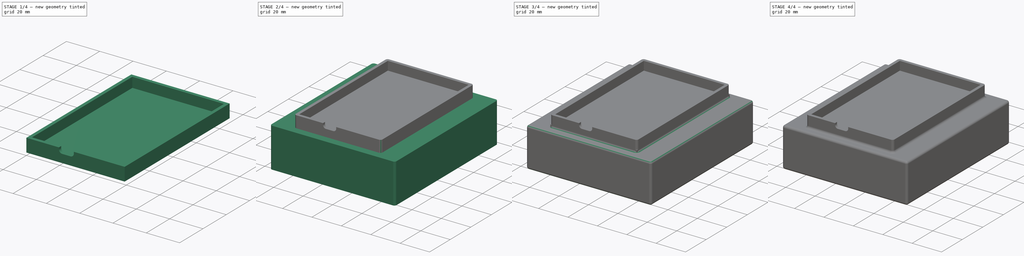
[diagram: build sequence overview — one tinted view per stage of 4, left to right]
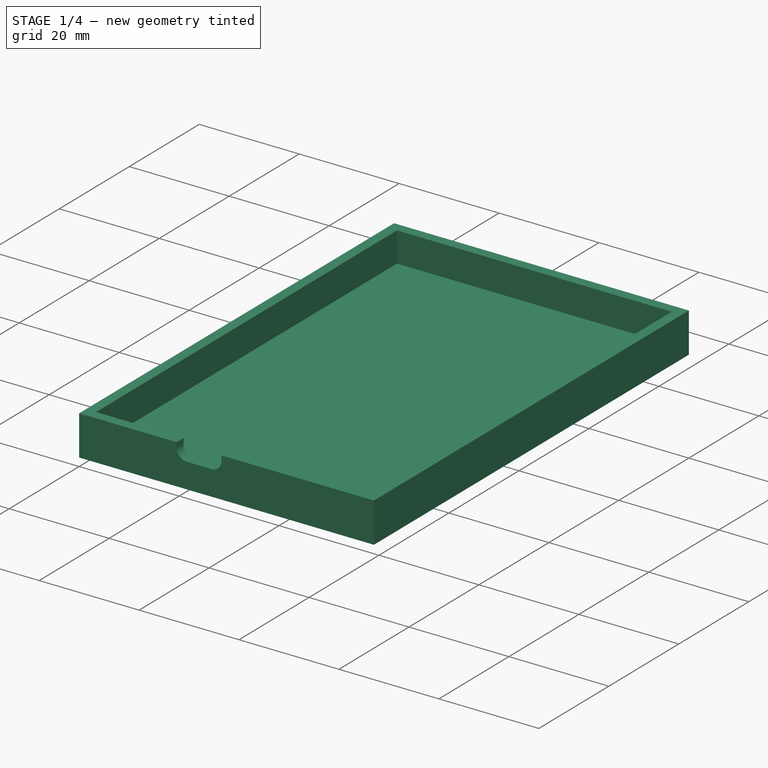
[diagram: stage 1 of 4 — iso view after this stage's code; geometry added in this stage tinted green]
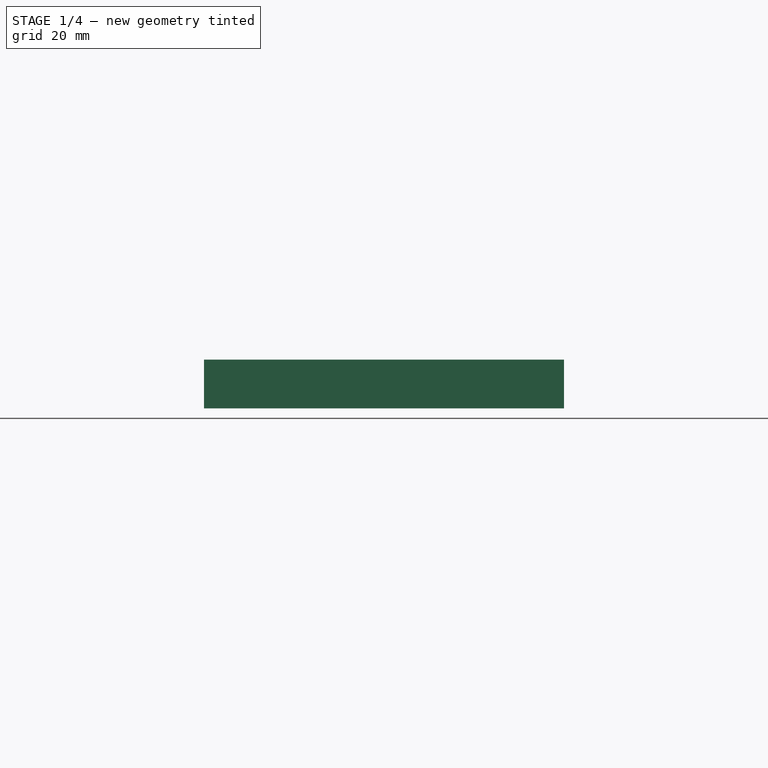
[diagram: stage 1 of 4 — front view after this stage's code; geometry added in this stage tinted green]
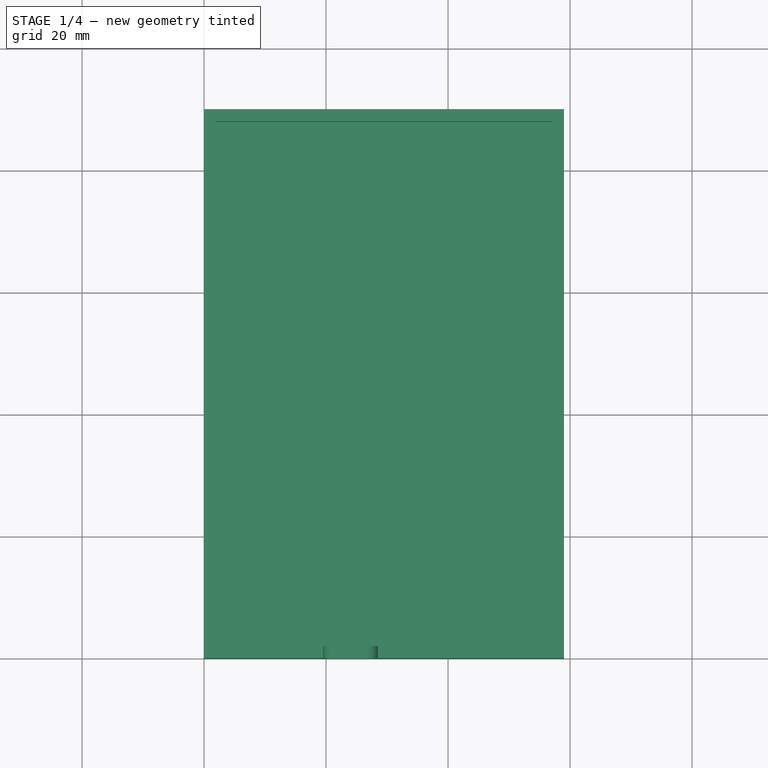
[diagram: stage 1 of 4 — top view after this stage's code; geometry added in this stage tinted green]
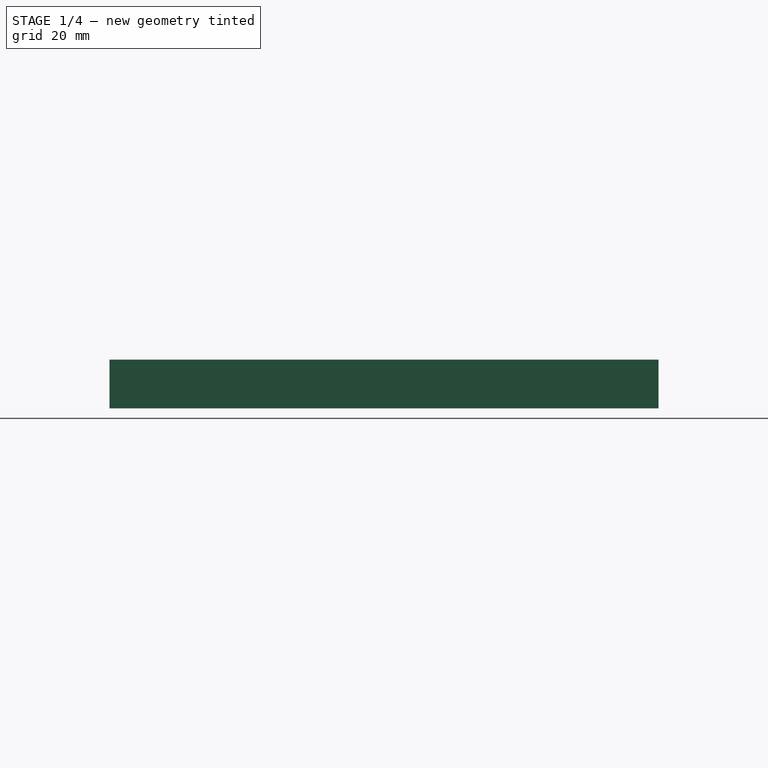
[diagram: stage 1 of 4 — right view after this stage's code; geometry added in this stage tinted green]
FCSTD DOCUMENT  (FreeCAD 1.0R39109 (Git))
Label: GuitarStrapControllerEnclosure
License: All rights reserved
LicenseURL: http://en.wikipedia.org/wiki/All_rights_reserved
objects: Sketcher::SketchObject×7, PartDesign::Pocket×5, PartDesign::Fillet×3, PartDesign::AdditiveBox×2, PartDesign::Pad×2, PartDesign::Body×2, App::Part×2
note: 52 computed .brp shape members not serialized (recipe doc carries the construction recipe); baked Part::Feature solids carry a one-line shape summary decoded from their .brp

FEATURE [PartDesign::AdditiveBox] Box
  AttacherType = Attacher::AttachEngine3D
  Height = 8
  Length = 59
  Suppressed = false
  Width = 90
FEATURE [Sketcher::SketchObject] Sketch
  ArcFitTolerance = 0
  AttachmentSupport = -> [Box]
  FullyConstrained = true
  MakeInternals = false
  MapMode = 5
  Placement = pos=(0,0,8) rot=(0,0,1;0rad)
  sketch-geometry (4):
    g0: LineSegment StartX=2 StartY=88 StartZ=0 EndX=57 EndY=88 EndZ=0
    g1: LineSegment StartX=57 StartY=88 StartZ=0 EndX=57 EndY=2 EndZ=0
    g2: LineSegment StartX=57 StartY=2 StartZ=0 EndX=2 EndY=2 EndZ=0
    g3: LineSegment StartX=2 StartY=2 StartZ=0 EndX=2 EndY=88 EndZ=0
  constraints (12):
    c: Coincident(g0,g1)
    c: Coincident(g1,g2)
    c: Coincident(g2,g3)
    c: Coincident(g3,g0)
    c: Horizontal(g0)
    c: Horizontal(g2)
    c: Vertical(g1)
    c: Vertical(g3)
    c: DistanceX(g0,g0) = 55
    c: DistanceY(g1,g1) = 86
    c: DistanceY(g-1,g2) = 2
    c: DistanceX(g-1,g2) = 2
FEATURE [PartDesign::Pocket] Pocket
  BaseFeature = -> Box
  Direction = (0,0,-1)
  Length = 6
  Length2 = 5
  Profile = -> Sketch
  ReferenceAxis = -> Sketch [N_Axis]
  Suppressed = false
  Type = 0
FEATURE [Sketcher::SketchObject] Sketch001
  ArcFitTolerance = 0
  AttachmentSupport = -> [Pocket]
  ExternalGeometry = -> [Pocket]
  FullyConstrained = true
  MakeInternals = false
  MapMode = 5
  Placement = pos=(0,0,0) rot=(1,0,0;1.5708rad)
  sketch-geometry (7):
    g0: LineSegment StartX=28.5 StartY=8 StartZ=0 EndX=28.5 EndY=7 EndZ=0
    g1: ArcOfCircle CenterX=26.5 CenterY=7 CenterZ=0 NormalX=0 NormalY=0 NormalZ=1 AngleXU=0 Radius=2 StartAngle=4.71239 EndAngle=6.28319
    g2: LineSegment StartX=26.5 StartY=5 StartZ=0 EndX=21.5 EndY=5 EndZ=0
    g3: ArcOfCircle CenterX=21.5 CenterY=7 CenterZ=0 NormalX=0 NormalY=0 NormalZ=1 AngleXU=0 Radius=2 StartAngle=3.14159 EndAngle=4.71239
    g4: LineSegment StartX=19.5 StartY=7 StartZ=0 EndX=19.5 EndY=8 EndZ=0
    g5: GeomPoint [constr] X=28.5 Y=5 Z=0
    g6: LineSegment StartX=19.5 StartY=8 StartZ=0 EndX=28.5 EndY=8 EndZ=0
  constraints (18):
    c: Tangent(g0,g1) = 1.5708
    c: Tangent(g1,g2) = 1.5708
    c: Tangent(g2,g3) = 1.5708
    c: Tangent(g3,g4) = 1.5708
    c: Horizontal(g2)
    c: Vertical(g0)
    c: Vertical(g4)
    c: Equal(g1,g3)
    c: PointOnObject(g5,g0)
    c: PointOnObject(g5,g2)
    c: PointOnObject(g0,g-3)
    c: PointOnObject(g4,g-3)
    c: DistanceX(g4,g0) = 9
    c: Radius(g1) = 2
    c: DistanceY(g2,g4) = 3
    c: DistanceX(g-1,g4) = 19.5
    c: Coincident(g6,g4)
    c: Coincident(g6,g0)
FEATURE [PartDesign::Pocket] Pocket001
  BaseFeature = -> Pocket
  Direction = (0,1,-2e-16)
  Length = 2
  Length2 = 5
  Profile = -> Sketch001
  ReferenceAxis = -> Sketch001 [N_Axis]
  Suppressed = false
  Type = 0
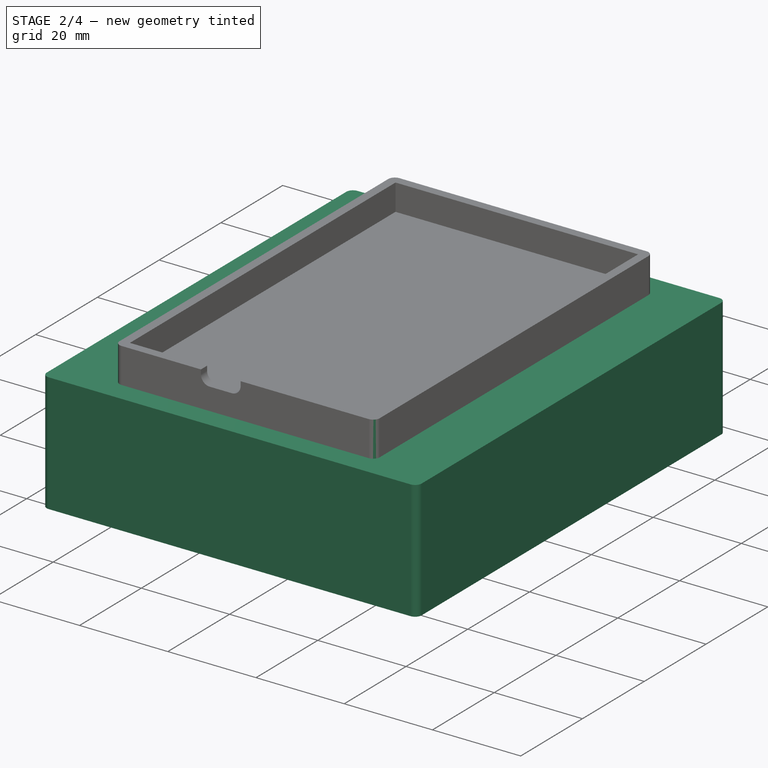
[diagram: stage 2 of 4 — iso view after this stage's code; geometry added in this stage tinted green]
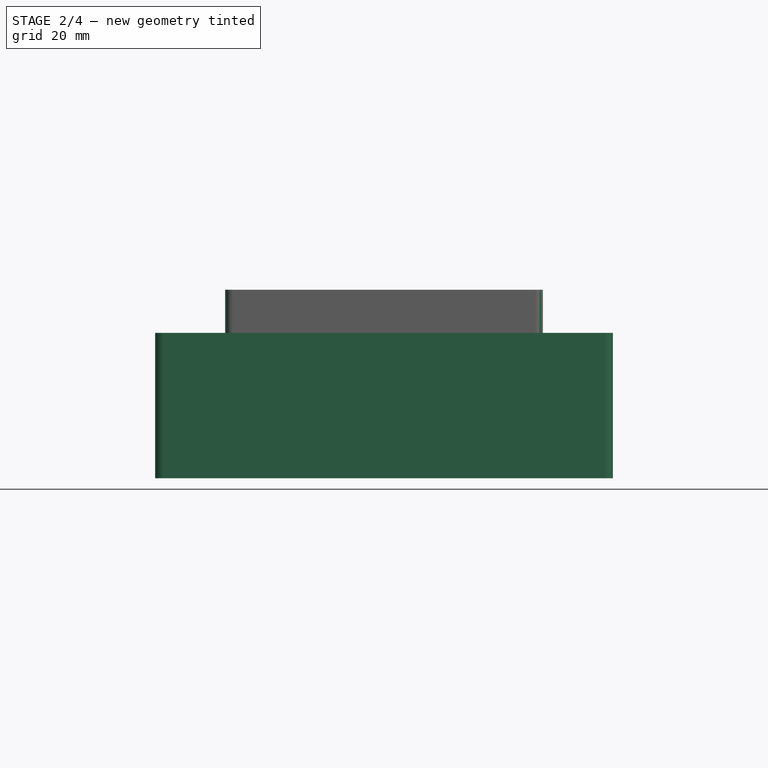
[diagram: stage 2 of 4 — front view after this stage's code; geometry added in this stage tinted green]
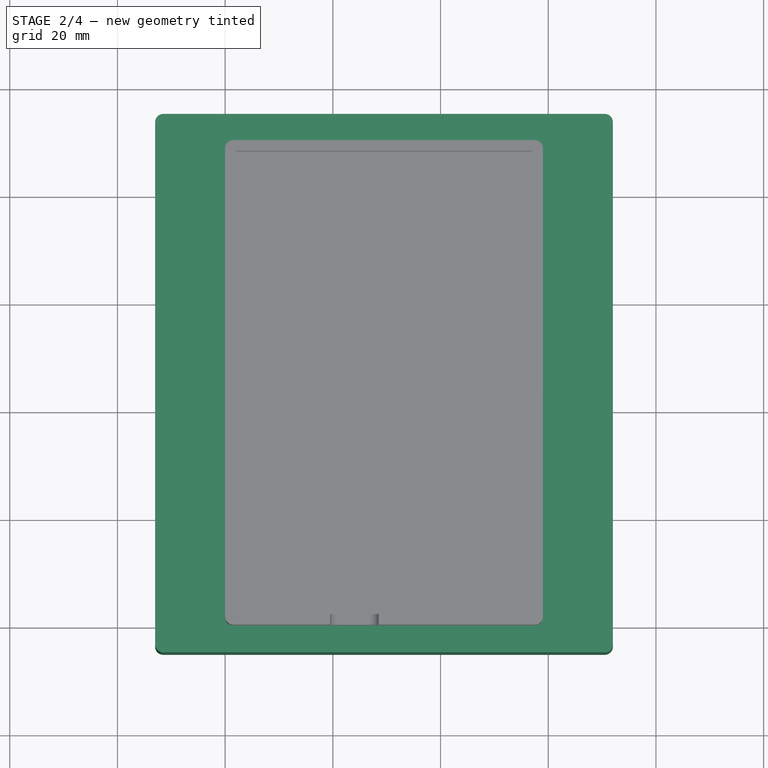
[diagram: stage 2 of 4 — top view after this stage's code; geometry added in this stage tinted green]
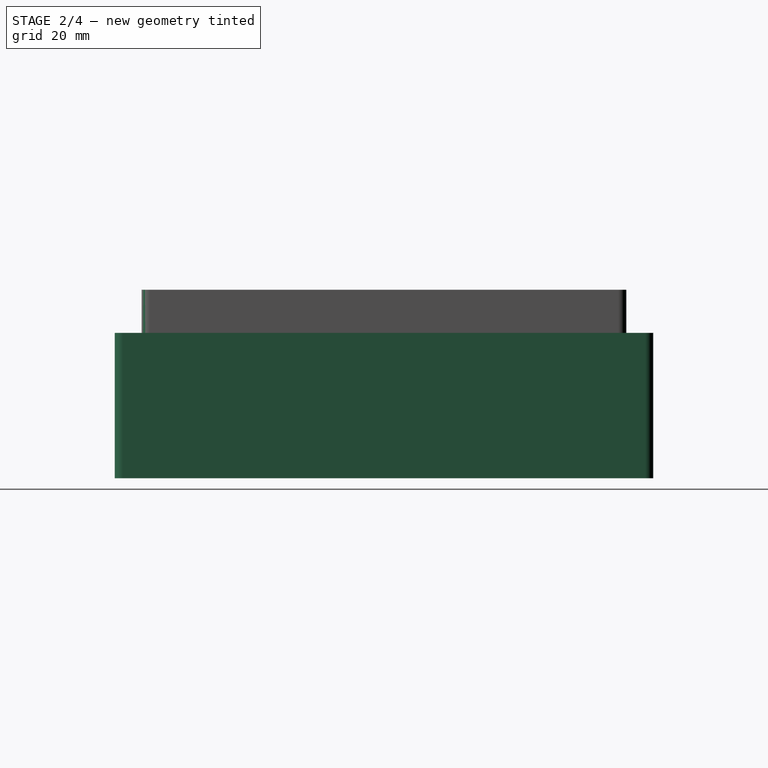
[diagram: stage 2 of 4 — right view after this stage's code; geometry added in this stage tinted green]
FEATURE [PartDesign::Body] Body001  label="Top"
  AllowCompound = false
  Group = -> [Box001,Sketch002,Sketch003,Pad,Sketch005,Pocket002,Fillet001,Pocket003]
  Origin = -> Origin003
  Tip = -> Pocket003
FEATURE [App::Part] Part001  label="TopPart"
  Group = -> [Body001]
  Origin = -> Origin002
FEATURE [Sketcher::SketchObject] Sketch006
  ArcFitTolerance = 1e-06
  AttachmentSupport = -> [Pocket001]
  ExternalGeometry = -> [Pocket001]
  FullyConstrained = true
  MakeInternals = false
  MapMode = 5
  Placement = pos=(0,0,0) rot=(1,0,0;3.14159rad)
  sketch-geometry (5):
    g0: LineSegment StartX=-13 StartY=5 StartZ=0 EndX=-13 EndY=-95 EndZ=0
    g1: LineSegment StartX=-13 StartY=-95 StartZ=0 EndX=72 EndY=-95 EndZ=0
    g2: LineSegment StartX=72 StartY=-95 StartZ=0 EndX=72 EndY=5 EndZ=0
    g3: LineSegment StartX=72 StartY=5 StartZ=0 EndX=-13 EndY=5 EndZ=0
    g4: GeomPoint [constr] X=29.5 Y=-45 Z=0
  constraints (12):
    c: Coincident(g0,g1)
    c: Coincident(g1,g2)
    c: Coincident(g2,g3)
    c: Coincident(g3,g0)
    c: Vertical(g0)
    c: Vertical(g2)
    c: Horizontal(g1)
    c: Horizontal(g3)
    c: Distance(g0,g2) = 85
    c: Distance(g1,g3) = 100
    c: Symmetric(g-3,g-1,g4)
    c: Symmetric(g0,g1,g4)
FEATURE [PartDesign::Pad] Pad002
  BaseFeature = -> Pocket001
  Direction = (0,0,-1)
  Length = 27
  Length2 = 10
  Profile = -> Sketch006
  ReferenceAxis = -> Sketch006 [N_Axis]
  Suppressed = false
  Type = 0
FEATURE [Sketcher::SketchObject] Sketch007
  ArcFitTolerance = 1e-06
  AttachmentSupport = -> [Pad002]
  ExternalGeometry = -> [Pad002]
  FullyConstrained = true
  MakeInternals = false
  MapMode = 5
  Placement = pos=(0,95,0) rot=(0,0.707107,0.707107;3.14159rad)
  sketch-geometry (11):
    g0: LineSegment StartX=-70 StartY=-7 StartZ=0 EndX=-70 EndY=-20 EndZ=0
    g1: LineSegment StartX=-65 StartY=-25 StartZ=0 EndX=6 EndY=-25 EndZ=0
    g2: LineSegment StartX=11 StartY=-20 StartZ=0 EndX=11 EndY=-7 EndZ=0
    g3: LineSegment StartX=6 StartY=-2 StartZ=0 EndX=-65 EndY=-2 EndZ=0
    g4: ArcOfCircle CenterX=-65 CenterY=-7 CenterZ=0 NormalX=0 NormalY=0 NormalZ=1 AngleXU=0 Radius=5 StartAngle=1.5708 EndAngle=3.14159
    g5: ArcOfCircle CenterX=-65 CenterY=-20 CenterZ=0 NormalX=0 NormalY=0 NormalZ=1 AngleXU=0 Radius=5 StartAngle=3.14159 EndAngle=4.71239
    g6: ArcOfCircle CenterX=6 CenterY=-20 CenterZ=0 NormalX=0 NormalY=0 NormalZ=1 AngleXU=0 Radius=5 StartAngle=4.71239 EndAngle=6.28319
    g7: ArcOfCircle CenterX=6 CenterY=-7 CenterZ=0 NormalX=0 NormalY=0 NormalZ=1 AngleXU=0 Radius=5 StartAngle=4.4e-15 EndAngle=1.5708
    g8: GeomPoint [constr] X=-70 Y=-2 Z=0
    g9: GeomPoint [constr] X=11 Y=-25 Z=0
    g10: GeomPoint [constr] X=-29.5 Y=-13.5 Z=0
  constraints (24):
    c: Tangent(g0,g4) = -1.5708
    c: Tangent(g0,g5) = -1.5708
    c: Tangent(g1,g5) = -1.5708
    c: Tangent(g1,g6) = -1.5708
    c: Tangent(g2,g6) = -1.5708
    c: Tangent(g2,g7) = -1.5708
    c: Tangent(g3,g7) = -1.5708
    c: Tangent(g3,g4) = -1.5708
    c: Vertical(g0)
    c: Vertical(g2)
    c: Horizontal(g1)
    c: Horizontal(g3)
    c: Equal(g4,g5)
    c: Equal(g5,g6)
    c: Equal(g6,g7)
    c: PointOnObject(g8,g0)
    c: PointOnObject(g8,g3)
    c: PointOnObject(g9,g1)
    c: PointOnObject(g9,g2)
    c: Distance(g0,g2) = 81
    c: Distance(g1,g3) = 23
    c: Radius(g5) = 5
    c: Symmetric(g-4,g-3,g10)
    c: Symmetric(g8,g9,g10)
FEATURE [PartDesign::Pocket] Pocket004
  BaseFeature = -> Pad002
  Direction = (0,-1,2e-16)
  Length = 98
  Length2 = 5
  Profile = -> Sketch007
  ReferenceAxis = -> Sketch007 [N_Axis]
  Suppressed = false
  Type = 0
FEATURE [PartDesign::Fillet] Fillet
  Base = -> Pocket004 [Edge1,Edge47,Edge50,Edge5,Edge3,Edge48,Edge24,Edge53]
  BaseFeature = -> Pocket004
  Radius = 1.5
  SupportTransform = false
  Suppressed = false
  UseAllEdges = false
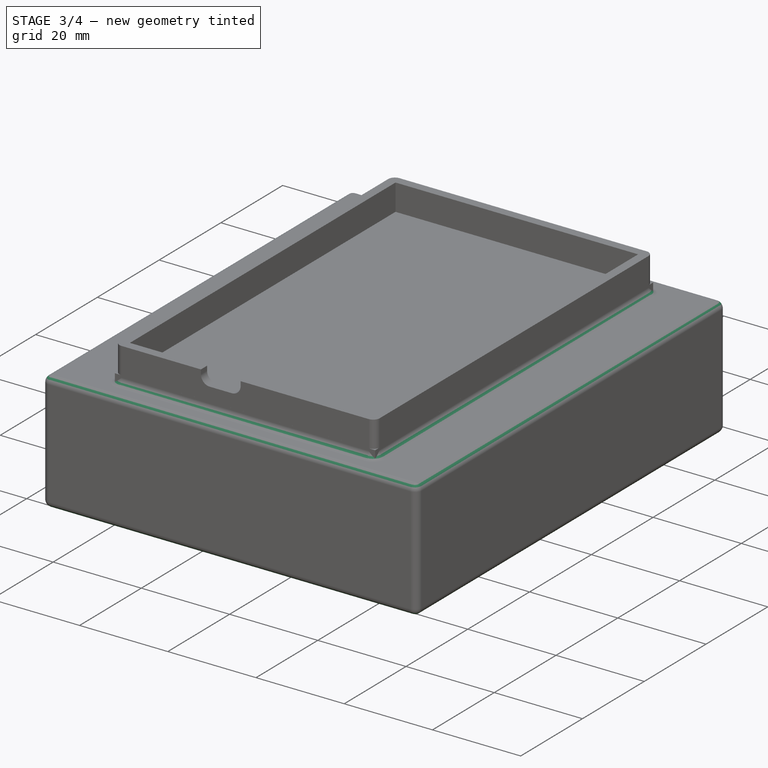
[diagram: stage 3 of 4 — iso view after this stage's code; geometry added in this stage tinted green]
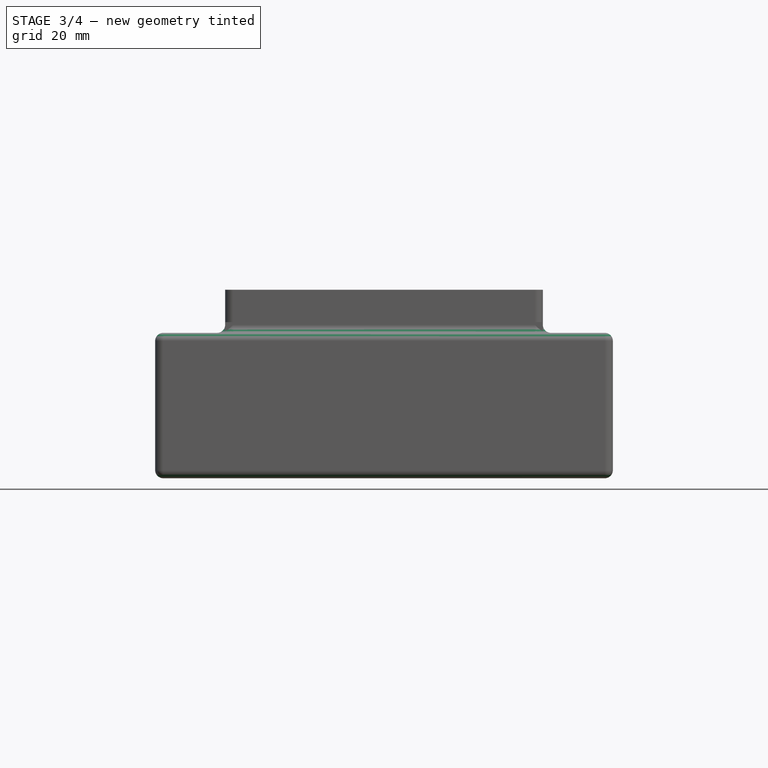
[diagram: stage 3 of 4 — front view after this stage's code; geometry added in this stage tinted green]
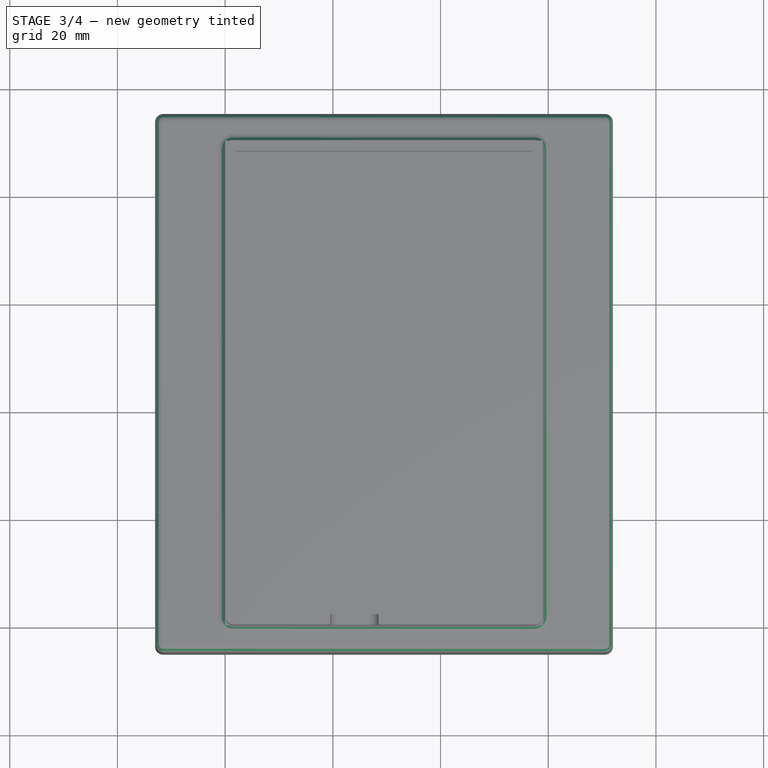
[diagram: stage 3 of 4 — top view after this stage's code; geometry added in this stage tinted green]
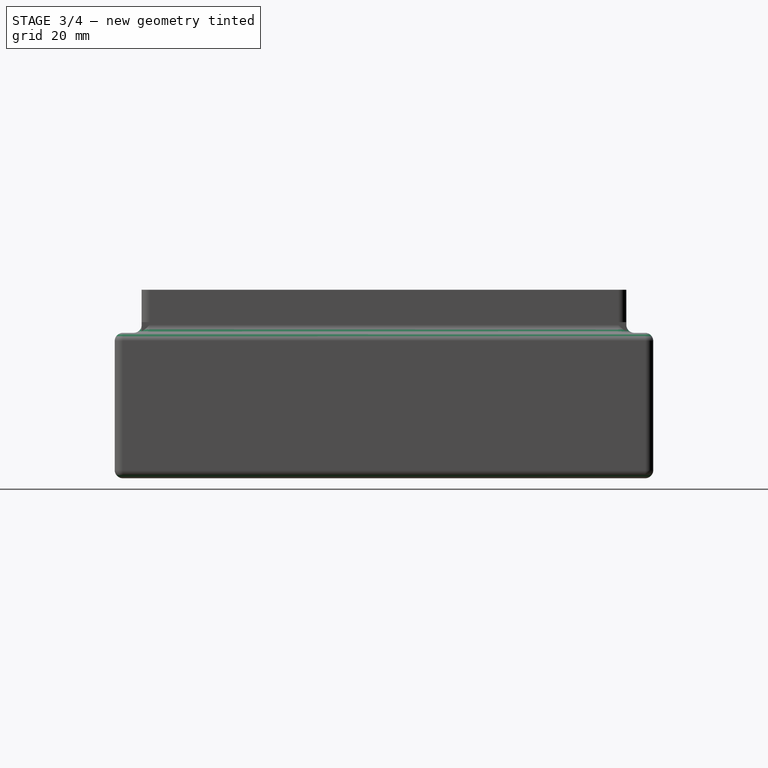
[diagram: stage 3 of 4 — right view after this stage's code; geometry added in this stage tinted green]
FEATURE [PartDesign::AdditiveBox] Box001
  AttacherType = Attacher::AttachEngine3D
  AttachmentSupport = -> [Box]
  Height = 2
  Length = 59
  MapMode = 2
  Suppressed = false
  Width = 90
FEATURE [Sketcher::SketchObject] Sketch002
  ArcFitTolerance = 0
  AttachmentSupport = -> [Box001]
  ExternalGeometry = -> [Box001]
  FullyConstrained = true
  MakeInternals = false
  MapMode = 5
  Placement = pos=(0,0,0) rot=(1,0,0;3.14159rad)
  sketch-geometry (22):
    g0: LineSegment StartX=4 StartY=-4.5 StartZ=0 EndX=11.5 EndY=-4.5 EndZ=0
    g1: LineSegment StartX=11.5 StartY=-4.5 StartZ=0 EndX=11.5 EndY=-12.5 EndZ=0
    g2: LineSegment StartX=11.5 StartY=-12.5 StartZ=0 EndX=4 EndY=-12.5 EndZ=0
    g3: LineSegment StartX=4 StartY=-12.5 StartZ=0 EndX=4 EndY=-4.5 EndZ=0
    g4: LineSegment StartX=4 StartY=-67 StartZ=0 EndX=11.5 EndY=-67 EndZ=0
    g5: LineSegment StartX=11.5 StartY=-67 StartZ=0 EndX=11.5 EndY=-75 EndZ=0
    g6: LineSegment StartX=11.5 StartY=-75 StartZ=0 EndX=4 EndY=-75 EndZ=0
    g7: LineSegment StartX=4 StartY=-75 StartZ=0 EndX=4 EndY=-67 EndZ=0
    g8: LineSegment StartX=4 StartY=-79.5 StartZ=0 EndX=11.5 EndY=-79.5 EndZ=0
    g9: LineSegment StartX=11.5 StartY=-79.5 StartZ=0 EndX=11.5 EndY=-87.5 EndZ=0
    g10: LineSegment StartX=11.5 StartY=-87.5 StartZ=0 EndX=4 EndY=-87.5 EndZ=0
    g11: LineSegment StartX=4 StartY=-87.5 StartZ=0 EndX=4 EndY=-79.5 EndZ=0
    g12: LineSegment StartX=34 StartY=-79.5 StartZ=0 EndX=34 EndY=-85.5 EndZ=0
    g13: LineSegment StartX=36 StartY=-87.5 StartZ=0 EndX=47 EndY=-87.5 EndZ=0
    g14: LineSegment StartX=49 StartY=-85.5 StartZ=0 EndX=49 EndY=-79.5 EndZ=0
    g15: LineSegment StartX=47 StartY=-77.5 StartZ=0 EndX=36 EndY=-77.5 EndZ=0
    g16: ArcOfCircle CenterX=36 CenterY=-79.5 CenterZ=0 NormalX=0 NormalY=0 NormalZ=1 AngleXU=0 Radius=2 StartAngle=1.5708 EndAngle=3.14159
    g17: ArcOfCircle CenterX=36 CenterY=-85.5 CenterZ=0 NormalX=0 NormalY=0 NormalZ=1 AngleXU=0 Radius=2 StartAngle=3.14159 EndAngle=4.71239
    g18: ArcOfCircle CenterX=47 CenterY=-85.5 CenterZ=0 NormalX=0 NormalY=0 NormalZ=1 AngleXU=0 Radius=2 StartAngle=4.71239 EndAngle=6.28319
    g19: ArcOfCircle CenterX=47 CenterY=-79.5 CenterZ=0 NormalX=0 NormalY=0 NormalZ=1 AngleXU=0 Radius=2 StartAngle=9e-16 EndAngle=1.5708
    g20: GeomPoint [constr] X=34 Y=-77.5 Z=0
    g21: GeomPoint [constr] X=49 Y=-87.5 Z=0
  constraints (60):
    c: Coincident(g0,g1)
    c: Coincident(g1,g2)
    c: Coincident(g2,g3)
    c: Coincident(g3,g0)
    c: Horizontal(g0)
    c: Horizontal(g2)
    c: Vertical(g1)
    c: Vertical(g3)
    c: DistanceY(g1,g1) = 8
    c: DistanceX(g0,g0) = 7.5
    c: DistanceY(g0,g-1) = 4.5
    c: DistanceX(g-1,g0) = 4
    c: Coincident(g4,g5)
    c: Coincident(g5,g6)
    c: Coincident(g6,g7)
    c: Coincident(g7,g4)
    c: Horizontal(g4)
    c: Horizontal(g6)
    c: Vertical(g5)
    c: Vertical(g7)
    c: Coincident(g8,g9)
    c: Coincident(g9,g10)
    c: Coincident(g10,g11)
    c: Coincident(g11,g8)
    c: Horizontal(g8)
    c: Horizontal(g10)
    c: Vertical(g9)
    c: Vertical(g11)
    c: Vertical(g8,g6)
    c: Vertical(g5,g8)
    c: Vertical(g4,g1)
    c: Vertical(g2,g4)
    c: Equal(g7,g11)
    c: Equal(g7,g3)
    c: DistanceY(g-3,g6) = 15
    c: DistanceY(g-3,g10) = 2.5
    c: Tangent(g12,g16) = -1.5708
    c: Tangent(g12,g17) = -1.5708
    c: Tangent(g13,g17) = -1.5708
    c: Tangent(g13,g18) = -1.5708
    c: Tangent(g14,g18) = -1.5708
    c: Tangent(g14,g19) = -1.5708
    c: Tangent(g15,g19) = -1.5708
    c: Tangent(g15,g16) = -1.5708
    c: Vertical(g12)
    c: Vertical(g14)
    c: Horizontal(g13)
    c: Horizontal(g15)
    c: Equal(g16,g17)
    c: Equal(g17,g18)
    c: Equal(g18,g19)
    c: PointOnObject(g20,g12)
    c: PointOnObject(g20,g15)
    c: PointOnObject(g21,g13)
    c: PointOnObject(g21,g14)
    c: Distance(g12,g14) = 15
    c: Distance(g13,g15) = 10
    c: Radius(g17) = 2
    c: DistanceX(g21,g-3) = 10
    c: Horizontal(g9,g13)
FEATURE [Sketcher::SketchObject] Sketch003
  ArcFitTolerance = 0
  AttachmentSupport = -> [Box001]
  ExternalGeometry = -> [Box001]
  FullyConstrained = true
  MakeInternals = false
  MapMode = 5
  Placement = pos=(0,0,0) rot=(1,0,0;3.14159rad)
  sketch-geometry (11):
    g0: GeomPoint [constr] X=29.5 Y=-45 Z=0
    g1: LineSegment StartX=3.5 StartY=-86.5 StartZ=0 EndX=55.5 EndY=-86.5 EndZ=0
    g2: LineSegment StartX=55.5 StartY=-86.5 StartZ=0 EndX=55.5 EndY=-3.5 EndZ=0
    g3: LineSegment StartX=55.5 StartY=-3.5 StartZ=0 EndX=3.5 EndY=-3.5 EndZ=0
    g4: LineSegment StartX=3.5 StartY=-3.5 StartZ=0 EndX=3.5 EndY=-86.5 EndZ=0
    g5: GeomPoint [constr] X=29.5 Y=-45 Z=0
    g6: LineSegment StartX=2 StartY=-88 StartZ=0 EndX=57 EndY=-88 EndZ=0
    g7: LineSegment StartX=57 StartY=-88 StartZ=0 EndX=57 EndY=-2 EndZ=0
    g8: LineSegment StartX=57 StartY=-2 StartZ=0 EndX=2 EndY=-2 EndZ=0
    g9: LineSegment StartX=2 StartY=-2 StartZ=0 EndX=2 EndY=-88 EndZ=0
    g10: GeomPoint [constr] X=29.5 Y=-45 Z=0
  constraints (25):
    c: Symmetric(g-1,g-3,g0)
    c: Coincident(g1,g2)
    c: Coincident(g2,g3)
    c: Coincident(g3,g4)
    c: Coincident(g4,g1)
    c: Horizontal(g1)
    c: Horizontal(g3)
    c: Vertical(g2)
    c: Vertical(g4)
    c: Symmetric(g3,g1,g5)
    c: Coincident(g5,g0)
    c: Coincident(g6,g7)
    c: Coincident(g7,g8)
    c: Coincident(g8,g9)
    c: Coincident(g9,g6)
    c: Horizontal(g6)
    c: Horizontal(g8)
    c: Vertical(g7)
    c: Vertical(g9)
    c: Symmetric(g8,g6,g10)
    c: Coincident(g10,g0)
    c: DistanceX(g2,g7) = 1.5
    c: DistanceY(g2,g7) = 1.5
    c: DistanceX(g-1,g8) = 2
    c: DistanceY(g8,g-1) = 2
FEATURE [PartDesign::Pad] Pad
  BaseFeature = -> Box001
  Direction = (0,0,-1)
  Length = 1.5
  Length2 = 10
  Profile = -> Sketch003
  ReferenceAxis = -> Sketch003 [N_Axis]
  Suppressed = false
  Type = 0
FEATURE [PartDesign::Fillet] Fillet002
  Base = -> Fillet [Edge34,Edge31,Edge84]
  BaseFeature = -> Fillet
  Radius = 1.5
  SupportTransform = false
  Suppressed = false
  UseAllEdges = false
FEATURE [PartDesign::Body] Body  label="Bottom"
  AllowCompound = false
  Group = -> [Box,Sketch,Pocket,Sketch001,Pocket001,Sketch006,Pad002,Sketch007,Pocket004,Fillet,Fillet002]
  Origin = -> Origin
  Tip = -> Fillet002
FEATURE [App::Part] Part  label="BottomPart"
  Group = -> [Body]
  Origin = -> Origin001
  Placement = pos=(0,0,-8) rot=(0,0,1;0rad)
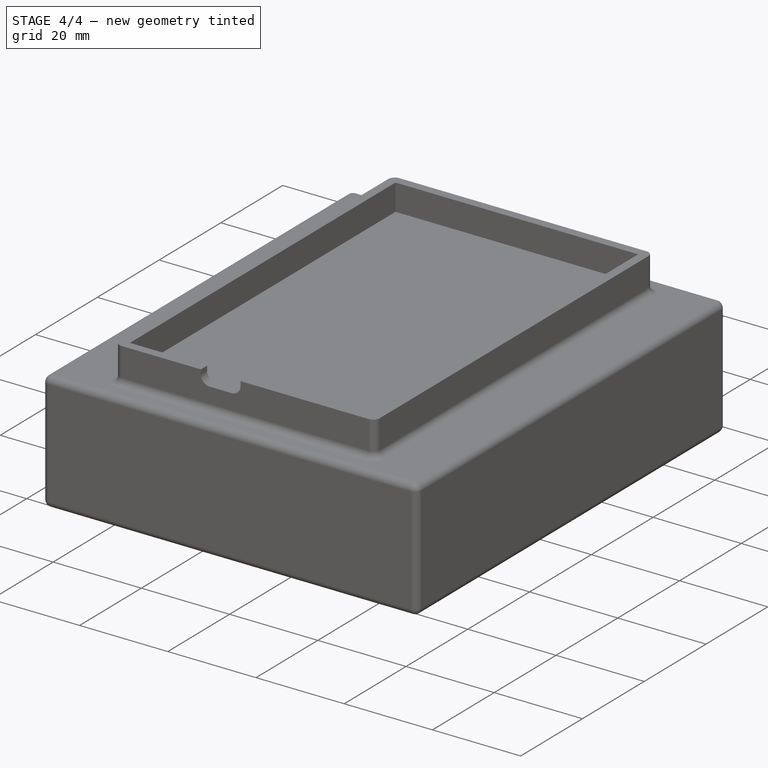
[diagram: stage 4 of 4 — iso view after this stage's code; geometry added in this stage tinted green]
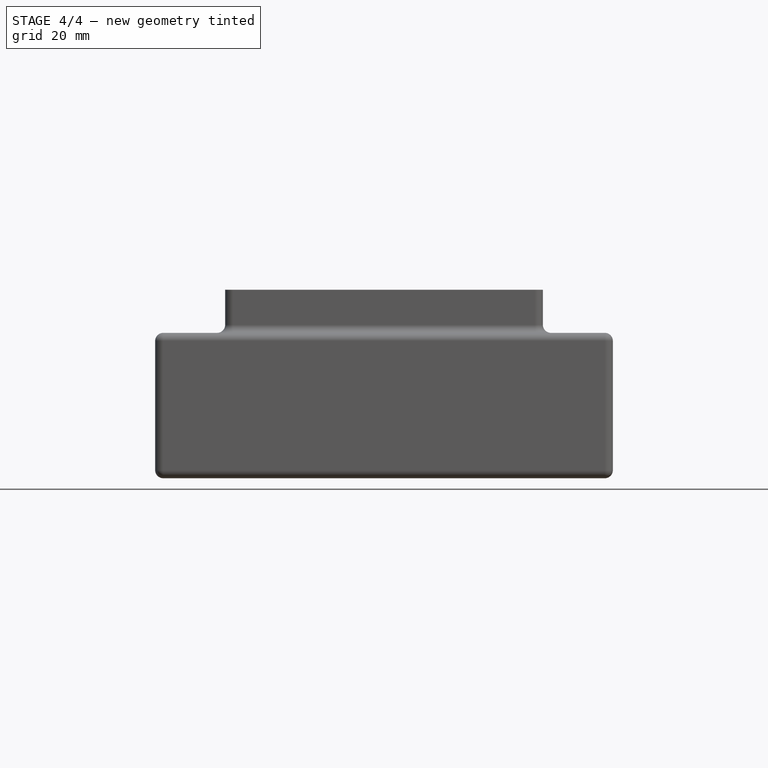
[diagram: stage 4 of 4 — front view after this stage's code; geometry added in this stage tinted green]
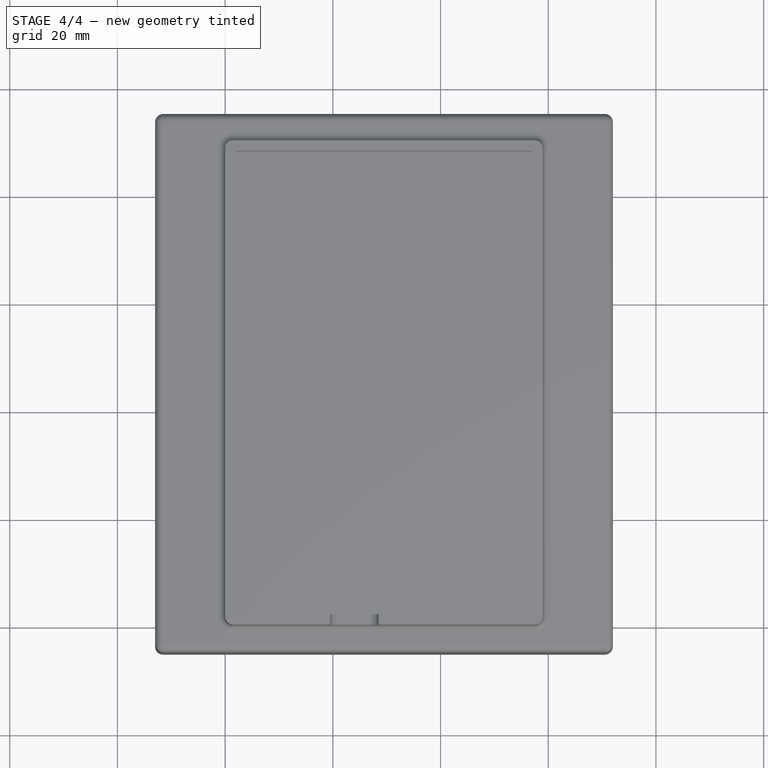
[diagram: stage 4 of 4 — top view after this stage's code; geometry added in this stage tinted green]
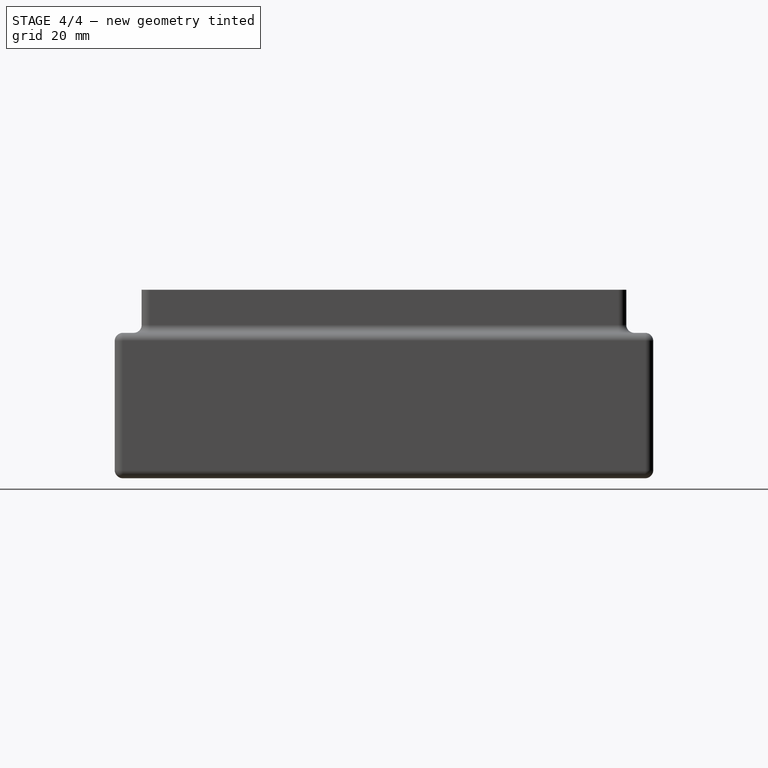
[diagram: stage 4 of 4 — right view after this stage's code; geometry added in this stage tinted green]
FEATURE [PartDesign::Pocket] Pocket002
  BaseFeature = -> Pad
  Direction = (0,0,1)
  Length = 2
  Length2 = 5
  Midplane = true
  Profile = -> Sketch002
  ReferenceAxis = -> Sketch002 [N_Axis]
  Suppressed = false
  Type = 1
FEATURE [PartDesign::Fillet] Fillet001
  Base = -> Pocket002 [Edge2,Edge7,Edge9,Edge8,Edge6,Edge1,Edge31,Edge3]
  BaseFeature = -> Pocket002
  Radius = 1.99
  SupportTransform = false
  Suppressed = false
  UseAllEdges = false
FEATURE [Sketcher::SketchObject] Sketch005
  ArcFitTolerance = 0
  AttachmentSupport = -> [Pad]
  FullyConstrained = true
  MakeInternals = false
  MapMode = 5
  Placement = pos=(0,3.5,0) rot=(0,0.707107,0.707107;3.14159rad)
  sketch-geometry (4):
    g0: ArcOfCircle CenterX=-26 CenterY=-1.5 CenterZ=0 NormalX=0 NormalY=0 NormalZ=1 AngleXU=0 Radius=1.5 StartAngle=1.5708 EndAngle=3.14159
    g1: ArcOfCircle CenterX=-20.5 CenterY=-1.5 CenterZ=0 NormalX=0 NormalY=0 NormalZ=1 AngleXU=0 Radius=1.5 StartAngle=0 EndAngle=1.5708
    g2: LineSegment StartX=-26 StartY=0 StartZ=0 EndX=-20.5 EndY=0 EndZ=0
    g3: LineSegment StartX=-27.5 StartY=-1.5 StartZ=0 EndX=-19 EndY=-1.5 EndZ=0
  constraints (14):
    c: Coincident(g2,g0)
    c: Coincident(g2,g1)
    c: Horizontal(g2)
    c: Coincident(g3,g0)
    c: Coincident(g3,g1)
    c: Horizontal(g3)
    c: Horizontal(g0,g1)
    c: Horizontal(g0,g0)
    c: Vertical(g0,g0)
    c: Vertical(g1,g1)
    c: DistanceX(g0,g1) = 8.5
    c: Radius(g0) = 1.5
    c: Horizontal(g0,g-1)
    c: DistanceX(g1,g-1) = 19
FEATURE [PartDesign::Pocket] Pocket003
  BaseFeature = -> Fillet001
  Direction = (0,-1,2e-16)
  Length = 1
  Length2 = 5
  Profile = -> Sketch005
  ReferenceAxis = -> Sketch005 [N_Axis]
  Refine = true
  Suppressed = false
  Type = 1
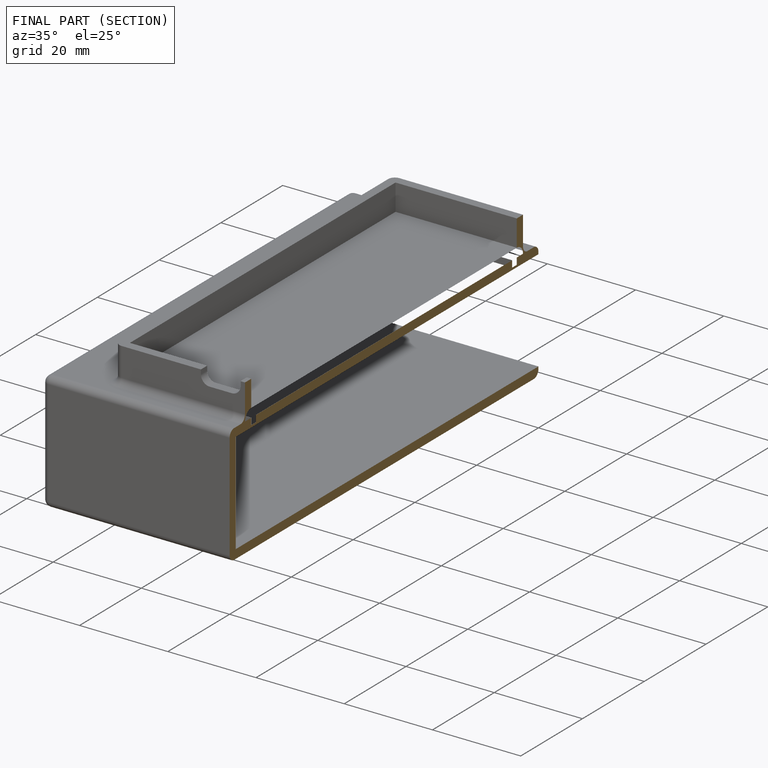
[diagram: finished part — half-section view (interior)]
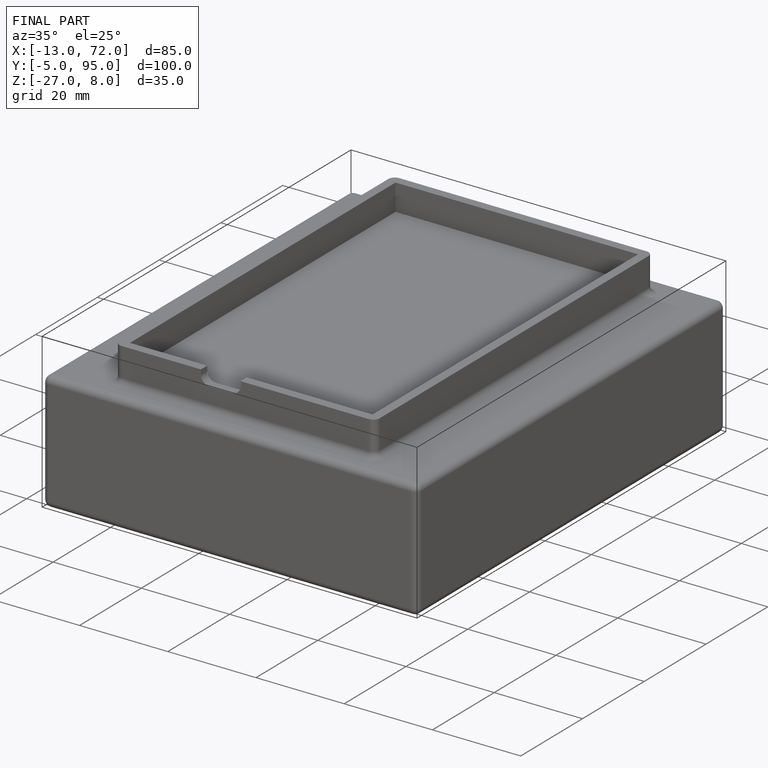
[diagram: finished part — iso view with bounding-box wireframe]
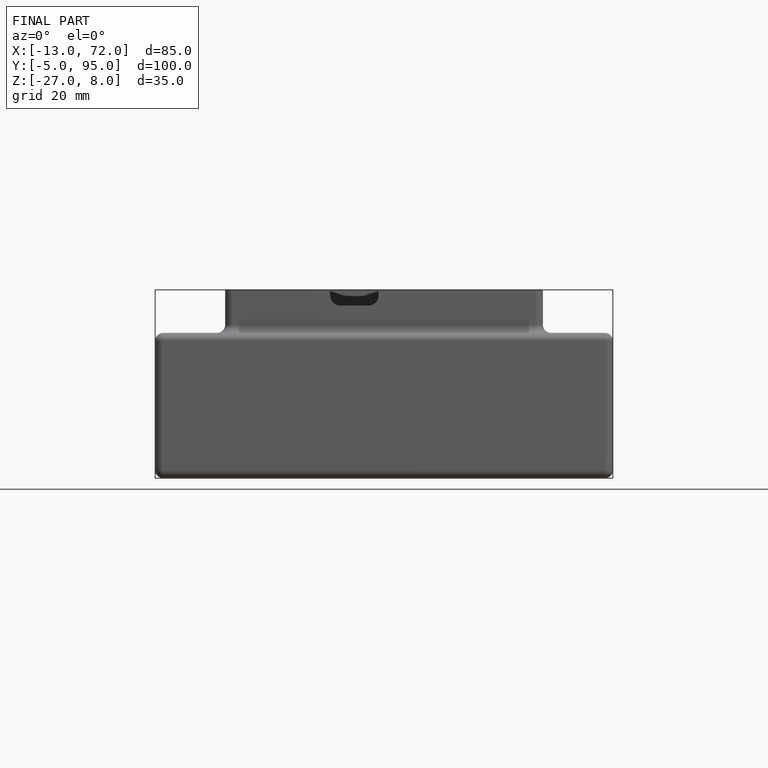
[diagram: finished part — front view with bounding-box wireframe]
